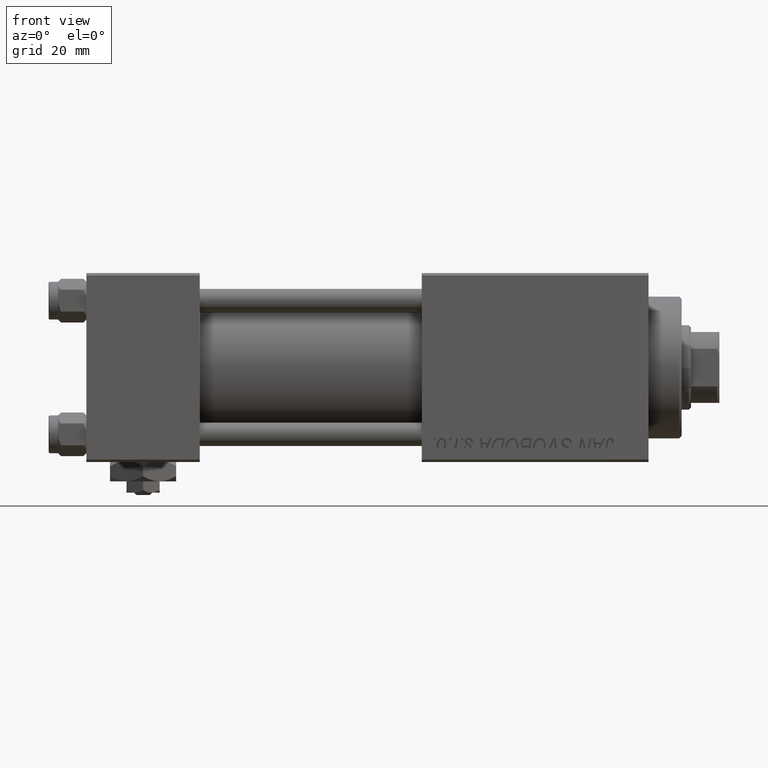
[diagram: clean part render]
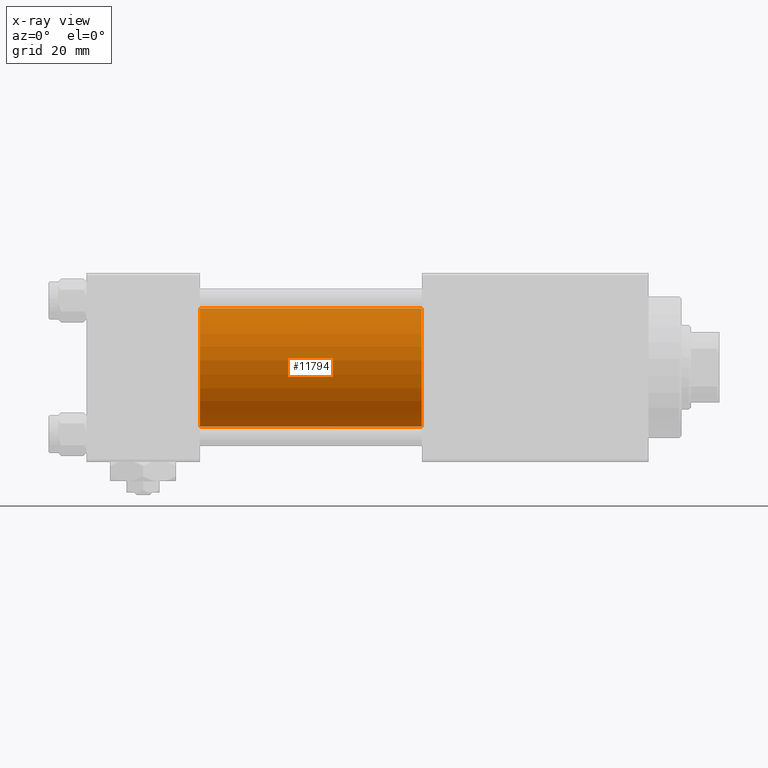
[diagram: x-ray — body ghosted, one internal face saturated and labeled with its STEP entity id]
A machine part, front view, then the same camera in x-ray: the body is ghosted and one INTERNAL B-rep face — a face not visible from any outside direction — is saturated and labeled: STEP entity #11794.
In plain terms, the highlighted cylindrical surface (partial cylindrical patch) has radius 12.5 mm, axis along (-1, -0, -0).
Its self-contained STEP definition (entity closure, byte-faithful):
#294 = DIRECTION ( 'NONE',  ( -1.000000000000000000, -0.000000000000000000, -0.000000000000000000 ) ) ;
#1299 = DIRECTION ( 'NONE',  ( 0.000000000000000000, 0.000000000000000000, -1.000000000000000000 ) ) ;
#1727 = CARTESIAN_POINT ( 'NONE',  ( 71.00000000000001421, -2.602085213965210642E-15, 0.000000000000000000 ) ) ;
#2679 = VERTEX_POINT ( 'NONE', #2877 ) ;
#2877 = CARTESIAN_POINT ( 'NONE',  ( 71.00000000000001421, -2.602085213965210642E-15, 12.49999999999999645 ) ) ;
#4319 = AXIS2_PLACEMENT_3D ( 'NONE', #33342, #13629, #1299 ) ;
#6786 = CARTESIAN_POINT ( 'NONE',  ( 24.00000000000000000, -1.071276715031019515E-15, -12.49999999999999645 ) ) ;
#10155 = CARTESIAN_POINT ( 'NONE',  ( 24.00000000000000000, -2.602085213965210642E-15, 12.49999999999999645 ) ) ;
#11639 = EDGE_CURVE ( 'NONE', #15443, #21950, #19398, .T. ) ;
#11794 = ADVANCED_FACE ( 'NONE', ( #45587 ), #17226, .F. ) ;
#13629 = DIRECTION ( 'NONE',  ( 1.000000000000000000, 0.000000000000000000, 0.000000000000000000 ) ) ;
#15271 = ORIENTED_EDGE ( 'NONE', *, *, #32761, .T. ) ;
#15443 = VERTEX_POINT ( 'NONE', #10155 ) ;
#15547 = CARTESIAN_POINT ( 'NONE',  ( 71.00000000000001421, -1.071276715031019515E-15, -12.49999999999999645 ) ) ;
#16615 = EDGE_LOOP ( 'NONE', ( #15271, #24748, #19626, #38379 ) ) ;
#17079 = CARTESIAN_POINT ( 'NONE',  ( 71.00000000000001421, -1.071276715031019515E-15, -12.49999999999999645 ) ) ;
#17226 = CYLINDRICAL_SURFACE ( 'NONE', #30333, 12.49999999999999645 ) ;
#17346 = VECTOR ( 'NONE', #294, 1000.000000000000000 ) ;
#18528 = DIRECTION ( 'NONE',  ( 1.000000000000000000, 0.000000000000000000, 0.000000000000000000 ) ) ;
#19037 = LINE ( 'NONE', #22436, #49111 ) ;
#19398 = CIRCLE ( 'NONE', #4319, 12.49999999999999645 ) ;
#19626 = ORIENTED_EDGE ( 'NONE', *, *, #11639, .F. ) ;
#21950 = VERTEX_POINT ( 'NONE', #6786 ) ;
#22436 = CARTESIAN_POINT ( 'NONE',  ( 71.00000000000001421, -2.602085213965210642E-15, 12.49999999999999645 ) ) ;
#24748 = ORIENTED_EDGE ( 'NONE', *, *, #28073, .T. ) ;
#25103 = DIRECTION ( 'NONE',  ( 0.000000000000000000, 0.000000000000000000, 1.000000000000000000 ) ) ;
#28073 = EDGE_CURVE ( 'NONE', #49173, #21950, #36265, .T. ) ;
#30257 = AXIS2_PLACEMENT_3D ( 'NONE', #39014, #18528, #43221 ) ;
#30333 = AXIS2_PLACEMENT_3D ( 'NONE', #1727, #41651, #25103 ) ;
#32761 = EDGE_CURVE ( 'NONE', #2679, #49173, #49530, .T. ) ;
#33342 = CARTESIAN_POINT ( 'NONE',  ( 24.00000000000000000, -2.602085213965210642E-15, 0.000000000000000000 ) ) ;
#35047 = DIRECTION ( 'NONE',  ( -1.000000000000000000, -0.000000000000000000, -0.000000000000000000 ) ) ;
#36265 = LINE ( 'NONE', #17079, #17346 ) ;
#38379 = ORIENTED_EDGE ( 'NONE', *, *, #48794, .F. ) ;
#39014 = CARTESIAN_POINT ( 'NONE',  ( 71.00000000000001421, -2.602085213965210642E-15, 0.000000000000000000 ) ) ;
#41651 = DIRECTION ( 'NONE',  ( -1.000000000000000000, -0.000000000000000000, -0.000000000000000000 ) ) ;
#43221 = DIRECTION ( 'NONE',  ( 0.000000000000000000, 0.000000000000000000, -1.000000000000000000 ) ) ;
#45587 = FACE_OUTER_BOUND ( 'NONE', #16615, .T. ) ;
#48794 = EDGE_CURVE ( 'NONE', #2679, #15443, #19037, .T. ) ;
#49111 = VECTOR ( 'NONE', #35047, 1000.000000000000000 ) ;
#49173 = VERTEX_POINT ( 'NONE', #15547 ) ;
#49530 = CIRCLE ( 'NONE', #30257, 12.49999999999999645 ) ;